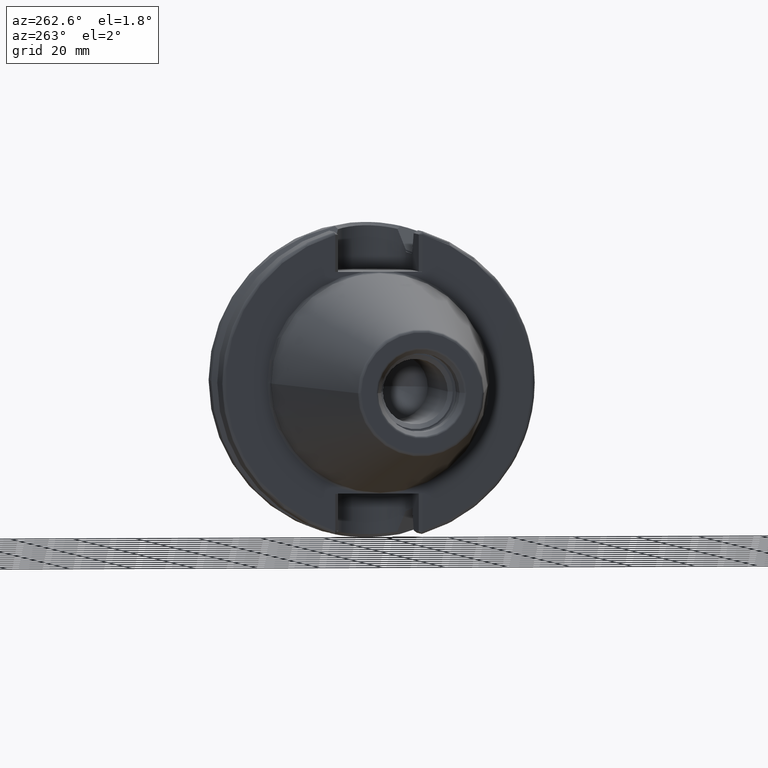
[diagram: clean part render]
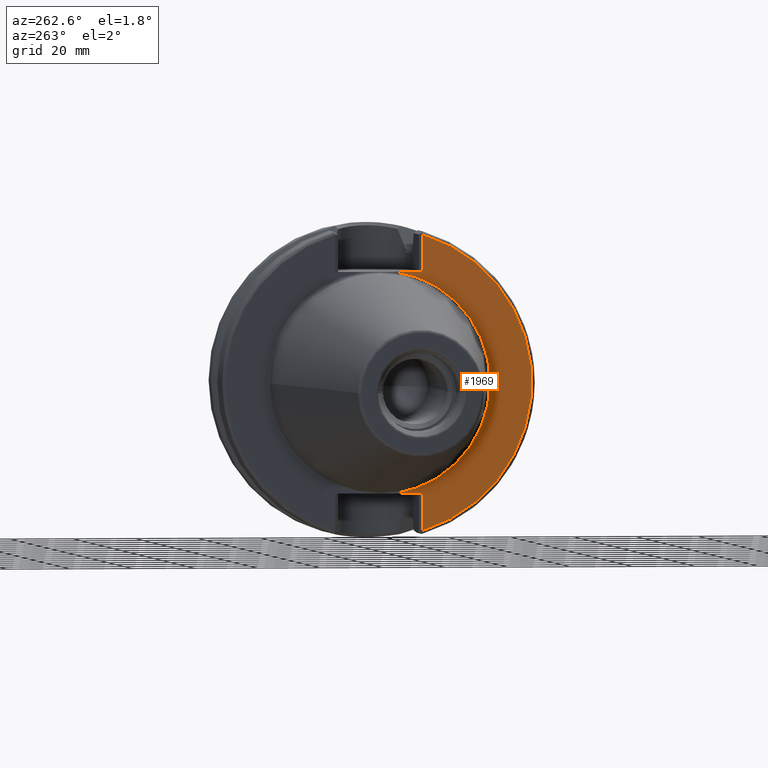
[diagram: same view with one face highlighted and labeled with its STEP entity id]
A machine part, auxiliary view. The second image highlights one B-rep face of the part: STEP entity #1969.
In plain terms, the highlighted planar face has unit normal (1, 0, 0).
Its self-contained STEP definition (entity closure, byte-faithful):
#111=CARTESIAN_POINT('',(3.E0,0.E0,0.E0));
#112=DIRECTION('',(-1.E0,0.E0,0.E0));
#113=DIRECTION('',(0.E0,-1.448140381786E-1,-9.894588896697E-1));
#114=AXIS2_PLACEMENT_3D('',#111,#112,#113);
#135=DIRECTION('',(-5.798787725116E-7,5.799135254102E-7,-9.999999999997E-1));
#136=VECTOR('',#135,1.177335004623E1);
#137=CARTESIAN_POINT('',(3.E0,-1.39025E1,-3.52E1));
#138=LINE('',#137,#136);
#139=DIRECTION('',(1.226013541690E-6,-1.226161370859E-6,-9.999999999985E-1));
#140=VECTOR('',#139,1.177335390066E1);
#141=CARTESIAN_POINT('',(2.999985565709E0,-1.390248556397E1,4.697335390064E1));
#142=LINE('',#141,#140);
#593=CARTESIAN_POINT('',(2.999993172884E0,-1.390249317248E1,-4.697335004622E1));
#605=CARTESIAN_POINT('',(3.E0,0.E0,0.E0));
#606=DIRECTION('',(-1.E0,0.E0,0.E0));
#607=DIRECTION('',(0.E0,-2.837968955579E-1,-9.588844153868E-1));
#608=AXIS2_PLACEMENT_3D('',#605,#606,#607);
#679=DIRECTION('',(0.E0,1.E0,0.E0));
#680=VECTOR('',#679,8.750740591798E0);
#681=CARTESIAN_POINT('',(3.E0,-1.39025E1,3.52E1));
#682=LINE('',#681,#680);
#720=CARTESIAN_POINT('',(3.E0,0.E0,0.E0));
#721=DIRECTION('',(1.E0,0.E0,0.E0));
#722=DIRECTION('',(0.E0,-1.448140381786E-1,9.894588896697E-1));
#723=AXIS2_PLACEMENT_3D('',#720,#721,#722);
#745=DIRECTION('',(0.E0,-1.E0,0.E0));
#746=VECTOR('',#745,8.750740591798E0);
#747=CARTESIAN_POINT('',(3.E0,-5.151759408202E0,-3.52E1));
#748=LINE('',#747,#746);
#1524=CARTESIAN_POINT('',(3.E0,-3.5575E1,0.E0));
#1526=VERTEX_POINT('',#1524);
#1590=CARTESIAN_POINT('',(3.E0,-5.151759408202E0,3.52E1));
#1591=VERTEX_POINT('',#1590);
#1598=CARTESIAN_POINT('',(3.E0,-5.151759408202E0,-3.52E1));
#1599=VERTEX_POINT('',#1598);
#1628=CARTESIAN_POINT('',(2.999985565709E0,-1.390248556397E1,4.697335390064E1));
#1629=CARTESIAN_POINT('',(3.E0,-1.39025E1,3.52E1));
#1630=VERTEX_POINT('',#1628);
#1631=VERTEX_POINT('',#1629);
#1653=VERTEX_POINT('',#593);
#1655=CARTESIAN_POINT('',(3.E0,-1.39025E1,-3.52E1));
#1656=VERTEX_POINT('',#1655);
#1949=CARTESIAN_POINT('',(3.E0,0.E0,0.E0));
#1950=DIRECTION('',(1.E0,0.E0,0.E0));
#1951=DIRECTION('',(0.E0,-1.E0,0.E0));
#1952=AXIS2_PLACEMENT_3D('',#1949,#1950,#1951);
#1953=PLANE('',#1952);
#1955=ORIENTED_EDGE('',*,*,#1954,.F.);
#1957=ORIENTED_EDGE('',*,*,#1956,.F.);
#1958=ORIENTED_EDGE('',*,*,#1921,.T.);
#1960=ORIENTED_EDGE('',*,*,#1959,.F.);
#1962=ORIENTED_EDGE('',*,*,#1961,.F.);
#1964=ORIENTED_EDGE('',*,*,#1963,.F.);
#1966=ORIENTED_EDGE('',*,*,#1965,.F.);
#1967=EDGE_LOOP('',(#1955,#1957,#1958,#1960,#1962,#1964,#1966));
#1968=FACE_OUTER_BOUND('',#1967,.F.);
#1969=ADVANCED_FACE('',(#1968),#1953,.F.);
#115=CIRCLE('',#114,3.5575E1);
#609=CIRCLE('',#608,4.89875E1);
#724=CIRCLE('',#723,3.5575E1);
#1921=EDGE_CURVE('',#1599,#1526,#115,.T.);
#1954=EDGE_CURVE('',#1656,#1653,#138,.T.);
#1956=EDGE_CURVE('',#1599,#1656,#748,.T.);
#1959=EDGE_CURVE('',#1591,#1526,#724,.T.);
#1961=EDGE_CURVE('',#1631,#1591,#682,.T.);
#1963=EDGE_CURVE('',#1630,#1631,#142,.T.);
#1965=EDGE_CURVE('',#1653,#1630,#609,.T.);